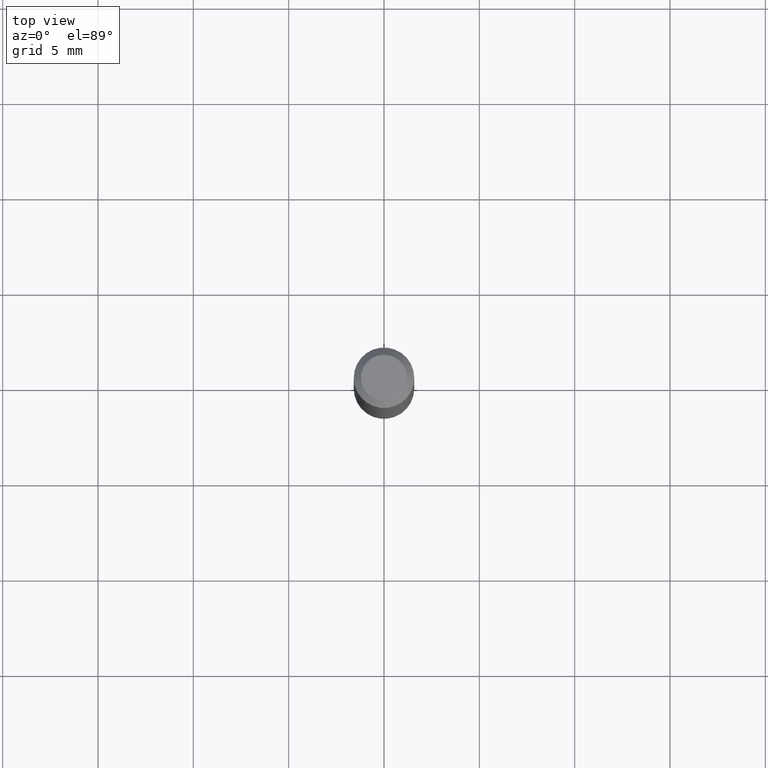
[diagram: clean part render]
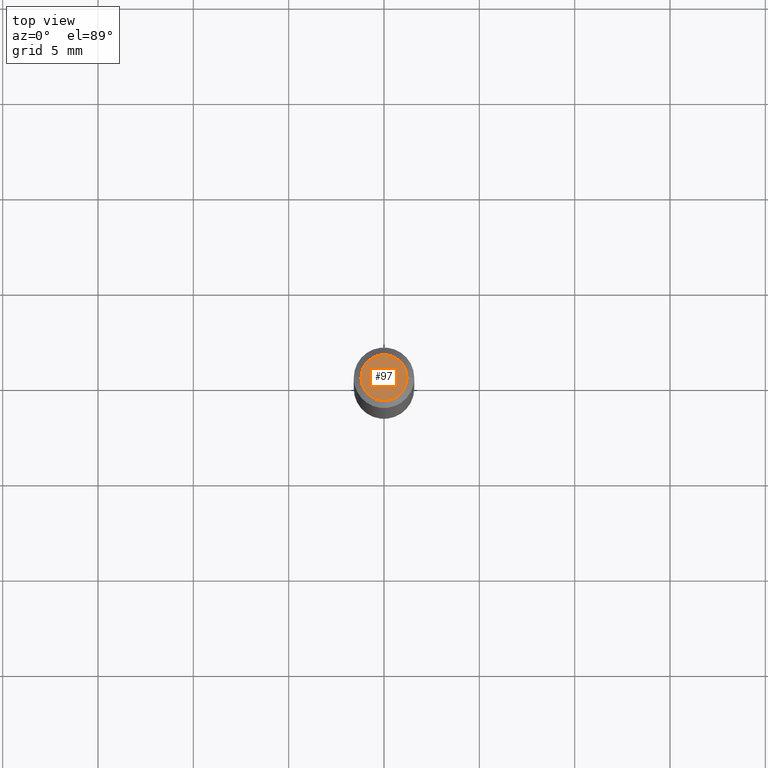
[diagram: same view with one face highlighted and labeled with its STEP entity id]
A machine part, top view. The second image highlights one B-rep face of the part: STEP entity #97.
In plain terms, the highlighted planar face has unit normal (0, -0, -1).
Its self-contained STEP definition (entity closure, byte-faithful):
#4 = DIRECTION ( 'NONE',  ( -2.445468806185136597E-29, 3.491481338843145583E-15, 1.000000000000000000 ) ) ;
#9 = ORIENTED_EDGE ( 'NONE', *, *, #35, .T. ) ;
#21 = CARTESIAN_POINT ( 'NONE',  ( -0.04750000000000000749, 3.578768372314221353E-16, 2.731847993664239060E-16 ) ) ;
#35 = EDGE_CURVE ( 'NONE', #481, #65, #482, .T. ) ;
#54 = CARTESIAN_POINT ( 'NONE',  ( 0.04750000000000000749, -4.035134999187568762E-16, 2.731847993664288856E-16 ) ) ;
#65 = VERTEX_POINT ( 'NONE', #21 ) ;
#90 = ORIENTED_EDGE ( 'NONE', *, *, #356, .T. ) ;
#95 = DIRECTION ( 'NONE',  ( -1.000000000000000000, 6.982962677686265922E-15, -4.876176775795935793E-29 ) ) ;
#97 = ADVANCED_FACE ( 'NONE', ( #421 ), #501, .F. ) ;
#101 = DIRECTION ( 'NONE',  ( 1.000000000000000000, -6.982962677686266711E-15, 4.852736867747365086E-29 ) ) ;
#106 = CIRCLE ( 'NONE', #412, 0.04750000000000000749 ) ;
#167 = DIRECTION ( 'NONE',  ( 2.438088387897960049E-29, -3.491481338843145188E-15, -1.000000000000000000 ) ) ;
#170 = AXIS2_PLACEMENT_3D ( 'NONE', #248, #489, #101 ) ;
#203 = CARTESIAN_POINT ( 'NONE',  ( 3.316907271900976589E-16, 0.04750000000000000749, -2.925296391183627249E-17 ) ) ;
#248 = CARTESIAN_POINT ( 'NONE',  ( -6.680649051745406845E-45, 9.538196290434862081E-31, 2.731847993664263218E-16 ) ) ;
#356 = EDGE_CURVE ( 'NONE', #65, #481, #106, .T. ) ;
#398 = EDGE_LOOP ( 'NONE', ( #90, #9 ) ) ;
#412 = AXIS2_PLACEMENT_3D ( 'NONE', #478, #4, #434 ) ;
#421 = FACE_OUTER_BOUND ( 'NONE', #398, .T. ) ;
#434 = DIRECTION ( 'NONE',  ( 1.000000000000000000, -6.982962677686266711E-15, 4.852736867747365086E-29 ) ) ;
#468 = AXIS2_PLACEMENT_3D ( 'NONE', #203, #167, #95 ) ;
#478 = CARTESIAN_POINT ( 'NONE',  ( -6.680649051745406845E-45, 9.538196290434862081E-31, 2.731847993664263218E-16 ) ) ;
#481 = VERTEX_POINT ( 'NONE', #54 ) ;
#482 = CIRCLE ( 'NONE', #170, 0.04750000000000000749 ) ;
#489 = DIRECTION ( 'NONE',  ( -2.445468806185136597E-29, 3.491481338843145583E-15, 1.000000000000000000 ) ) ;
#501 = PLANE ( 'NONE',  #468 ) ;